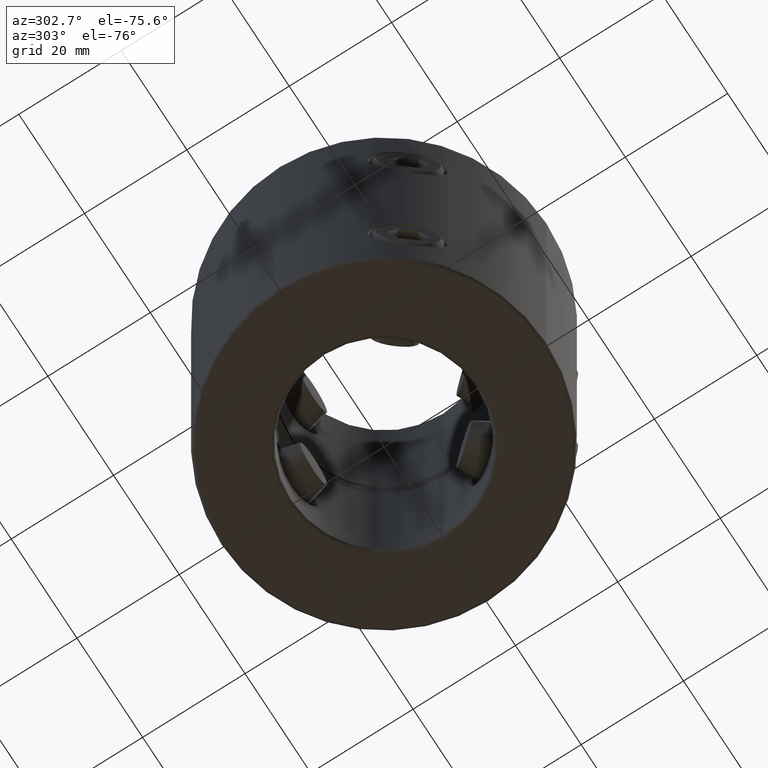
[diagram: clean part render]
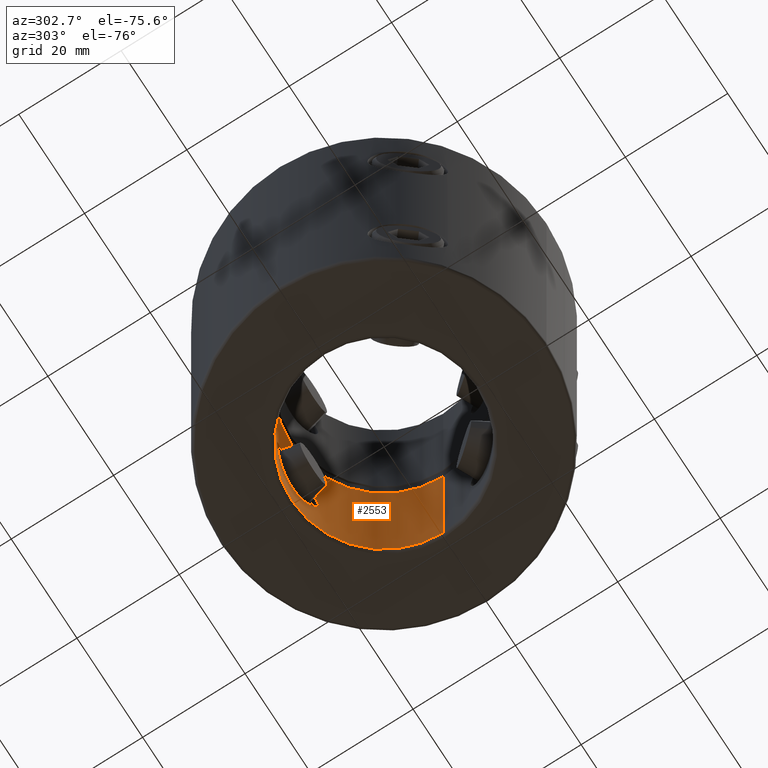
[diagram: same view with one face highlighted and labeled with its STEP entity id]
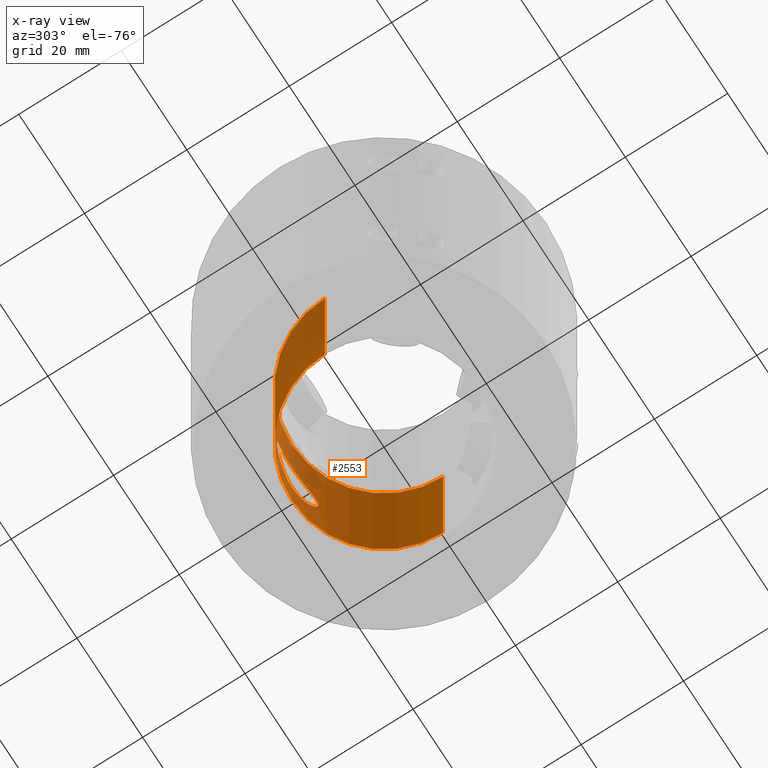
[diagram: x-ray of the same camera — body ghosted, the highlighted face saturated]
A machine part, auxiliary view. The second image highlights one B-rep face of the part: STEP entity #2553.
The next image is the same camera in x-ray: the body ghosted, the highlighted face saturated — about 22% of this face is hidden behind the body in this view.
In plain terms, the highlighted cylindrical surface (partial cylindrical patch) has radius 18 mm, axis along (0, -0, 1).
Its self-contained STEP definition (entity closure, byte-faithful):
#1145=EDGE_CURVE('NONE',#2211,#1853,#3258,.T.);
#1213=VERTEX_POINT('NONE',#3332);
#1277=EDGE_CURVE('NONE',#2715,#1853,#3402,.T.);
#1375=EDGE_CURVE('NONE',#2715,#2929,#3512,.T.);
#1383=VERTEX_POINT('NONE',#3520);
#1543=EDGE_CURVE('NONE',#1887,#1383,#3694,.T.);
#1853=VERTEX_POINT('NONE',#4038);
#1887=VERTEX_POINT('NONE',#4083);
#2211=VERTEX_POINT('NONE',#4457);
#2249=EDGE_CURVE('NONE',#1213,#2889,#4500,.T.);
#2547=EDGE_CURVE('NONE',#1383,#2211,#4842,.T.);
#2553=ADVANCED_FACE('NONE',(#4851,#4852),#4853,.F.);
#2607=EDGE_CURVE('NONE',#2889,#1213,#4911,.T.);
#2699=EDGE_CURVE('NONE',#2929,#1887,#5015,.T.);
#2715=VERTEX_POINT('NONE',#5034);
#2889=VERTEX_POINT('NONE',#5229);
#2929=VERTEX_POINT('NONE',#5272);
#3258=CIRCLE('',#5647,18.0);
#3332=CARTESIAN_POINT('',(7.021729373421E-014,18.0,-70.225));
#3402=LINE('',#6012,#6013);
#3512=CIRCLE('',#6198,18.0);
#3520=CARTESIAN_POINT('',(-18.0,2.20429143688028E-015,-42.25));
#3694=LINE('',#6449,#6450);
#4038=CARTESIAN_POINT('',(18.0,0.0,-42.25));
#4083=CARTESIAN_POINT('',(-18.0,2.20429143688028E-015,-79.3299999999999));
#4457=CARTESIAN_POINT('',(2.21959901630306E-015,18.0,-42.25));
#4500=B_SPLINE_CURVE_WITH_KNOTS('',3,(#7896,#7897,#7898,#7899,#7900,#7901,#7902,#7903,#7904,#7905,#7906,#7907,#7908,#7909,#7910,#7911,#7912,#7913,#7914,#7915,#7916,#7917,#7918,#7919,#7920,#7921,#7922,#7923,#7924,#7925,#7926,#7927,#7928,#7929,#7930,#7931,#7932,#7933,#7934,#7935,#7936,#7937,#7938,#7939),.UNSPECIFIED.,.F.,.F.,(4,2,2,2,2,2,2,2,2,2,2,2,2,2,2,2,2,2,2,2,2,4),(0.0197750623149012,0.0203928836318598,0.0210107049488184,0.0222463475827355,0.0234819902166526,0.0247176328505697,0.0259532754844868,0.0265710968014453,0.0271889181184039,0.0284245607523209,0.029660203386238,0.030895846020155,0.0315136673371135,0.032131488654072,0.0327493099710306,0.0333671312879891,0.0346027739219061,0.0358384165558232,0.0370740591897403,0.0376918805066988,0.0383097018236573,0.0395453444575744),.UNSPECIFIED.);
#4842=CIRCLE('',#8518,18.0);
#4851=FACE_OUTER_BOUND('',#8527,.T.);
#4852=FACE_BOUND('',#8528,.T.);
#4853=CYLINDRICAL_SURFACE('',#8529,18.0);
#4911=B_SPLINE_CURVE_WITH_KNOTS('',3,(#8606,#8607,#8608,#8609,#8610,#8611,#8612,#8613,#8614,#8615,#8616,#8617,#8618,#8619,#8620,#8621,#8622,#8623,#8624,#8625,#8626,#8627,#8628,#8629,#8630,#8631,#8632,#8633,#8634,#8635,#8636,#8637,#8638,#8639,#8640,#8641,#8642,#8643,#8644,#8645,#8646,#8647,#8648,#8649),.UNSPECIFIED.,.F.,.F.,(4,2,2,2,2,2,2,2,2,2,2,2,2,2,2,2,2,2,2,2,2,4),(0.0,0.0012359413946813,0.00185391209202195,0.0024718827893626,0.0037078241840439,0.00432579488138455,0.0049437655787252,0.00617970697340651,0.00741564836808782,0.00803361906542847,0.00865158976276912,0.00988753115745046,0.0111234725521318,0.0123594139468131,0.0135953553414945,0.0142133260388351,0.0148312967361758,0.0160672381308572,0.0173031795255385,0.0185391209202199,0.0191570916175606,0.0197750623149012),.UNSPECIFIED.);
#5015=CIRCLE('',#8849,18.0);
#5034=CARTESIAN_POINT('',(18.0,0.0,-79.3300000000001));
#5229=CARTESIAN_POINT('',(1.55894732073534E-013,18.0,-57.675));
#5272=CARTESIAN_POINT('',(9.53404706511296E-017,18.0,-79.33));
#5647=AXIS2_PLACEMENT_3D('',#10085,#10086,#10087);
#6012=CARTESIAN_POINT('',(18.0,0.0,0.0499999999999947));
#6013=VECTOR('',#10236,1000.0);
#6198=AXIS2_PLACEMENT_3D('',#10372,#10373,#10374);
#6449=CARTESIAN_POINT('',(-18.0,2.20429143688028E-015,0.0499999999999986));
#6450=VECTOR('',#10569,1000.0);
#7896=CARTESIAN_POINT('',(7.021729373421E-014,18.0,-70.225));
#7897=CARTESIAN_POINT('',(-0.205887554566942,18.0,-70.225));
#7898=CARTESIAN_POINT('',(-0.411770086211887,17.9964685669834,-70.2148919052617));
#7899=CARTESIAN_POINT('',(-0.823524971339323,17.9823313868892,-70.174165149648));
#7900=CARTESIAN_POINT('',(-1.03061502380834,17.9716283269579,-70.1432640625023));
#7901=CARTESIAN_POINT('',(-1.64099927630124,17.9296818034686,-70.0208314649564));
#7902=CARTESIAN_POINT('',(-2.03351167246427,17.8888495169559,-69.900531068749));
#7903=CARTESIAN_POINT('',(-2.79109364396325,17.7863965724643,-69.5850497773155));
#7904=CARTESIAN_POINT('',(-3.15790746677963,17.7241829102026,-69.3877722986615));
#7905=CARTESIAN_POINT('',(-3.83480642338882,17.5901477850016,-68.9335737012678));
#7906=CARTESIAN_POINT('',(-4.14887966905775,17.5178824074971,-68.6755137938334));
#7907=CARTESIAN_POINT('',(-4.7284310599745,17.3704158344665,-68.095554587157));
#7908=CARTESIAN_POINT('',(-4.98795657772271,17.2967062925269,-67.7789569235854));
#7909=CARTESIAN_POINT('',(-5.3269727022665,17.1941065972357,-67.2726850686285));
#7910=CARTESIAN_POINT('',(-5.43194538022429,17.1611280193554,-67.0982498403775));
#7911=CARTESIAN_POINT('',(-5.625537618957,17.098645326696,-66.7376215971464));
#7912=CARTESIAN_POINT('',(-5.7145971514104,17.0689886505111,-66.550290499162));
#7913=CARTESIAN_POINT('',(-5.95213821121081,16.9882320248867,-65.9792118781459));
#7914=CARTESIAN_POINT('',(-6.07152855692418,16.9453221828597,-65.5874113230135));
#7915=CARTESIAN_POINT('',(-6.23324487649969,16.886505298849,-64.7814043347667));
#7916=CARTESIAN_POINT('',(-6.27509210594005,16.8707800374392,-64.3620870989713));
#7917=CARTESIAN_POINT('',(-6.27490758164132,16.8708486701632,-63.5351125971665));
#7918=CARTESIAN_POINT('',(-6.23434443992152,16.8861013453688,-63.1253444254397));
#7919=CARTESIAN_POINT('',(-6.11251687415186,16.9304165564117,-62.5162520911031));
#7920=CARTESIAN_POINT('',(-6.06135231937529,16.9488672590645,-62.3134702332667));
#7921=CARTESIAN_POINT('',(-5.94071506812946,16.9915272351924,-61.9187131920135));
#7922=CARTESIAN_POINT('',(-5.87110603229566,17.0157873292139,-61.725682079938));
#7923=CARTESIAN_POINT('',(-5.71375962752675,17.0692663988333,-61.3479955475032));
#7924=CARTESIAN_POINT('',(-5.62602152188694,17.0984865449664,-61.163340604686));
#7925=CARTESIAN_POINT('',(-5.43229253748888,17.1610185618533,-60.8023363366825));
#7926=CARTESIAN_POINT('',(-5.32566608935776,17.1945200879321,-60.6251004311969));
#7927=CARTESIAN_POINT('',(-4.98300017278498,17.2981695758994,-60.1141767467886));
#7928=CARTESIAN_POINT('',(-4.72484171453589,17.3713537367251,-59.8006718025942));
#7929=CARTESIAN_POINT('',(-4.14965982000436,17.5176591830099,-59.2254495350937));
#7930=CARTESIAN_POINT('',(-3.82928229170922,17.5913543655339,-58.9621870643095));
#7931=CARTESIAN_POINT('',(-3.15202202629582,17.7252336635976,-58.5088201741914));
#7932=CARTESIAN_POINT('',(-2.79327745391647,17.7860774517163,-58.315944053245));
#7933=CARTESIAN_POINT('',(-2.22345835472087,17.8631735830472,-58.078526758023));
#7934=CARTESIAN_POINT('',(-2.02713447779372,17.8865915766279,-58.0078621981874));
#7935=CARTESIAN_POINT('',(-1.63203941961117,17.9269595791643,-57.8874326247352));
#7936=CARTESIAN_POINT('',(-1.43257565672668,17.9440369865789,-57.837265650737));
#7937=CARTESIAN_POINT('',(-0.828496060215111,17.9854535619775,-57.7163897919558));
#7938=CARTESIAN_POINT('',(-0.418044610906762,18.0,-57.675));
#7939=CARTESIAN_POINT('',(1.55894732073534E-013,18.0,-57.675));
#8518=AXIS2_PLACEMENT_3D('',#12059,#12060,#12061);
#8527=EDGE_LOOP('',(#12082,#12083,#12084,#12085,#12086,#12087));
#8528=EDGE_LOOP('',(#12088,#12089));
#8529=AXIS2_PLACEMENT_3D('',#12090,#12091,#12092);
#8606=CARTESIAN_POINT('',(1.55894732073534E-013,18.0,-57.675));
#8607=CARTESIAN_POINT('',(0.418145688131202,18.0,-57.675));
#8608=CARTESIAN_POINT('',(0.828676650340322,17.9854588281512,-57.7163726089908));
#8609=CARTESIAN_POINT('',(1.43365962246789,17.9439538187488,-57.8375092885882));
#8610=CARTESIAN_POINT('',(1.63350557788434,17.92683118571,-57.8878104382635));
#8611=CARTESIAN_POINT('',(2.02951907686067,17.886326317905,-58.0086588153798));
#8612=CARTESIAN_POINT('',(2.22538630764336,17.8629305471067,-58.0792668099584));
#8613=CARTESIAN_POINT('',(2.79437900350596,17.7858925494555,-58.3165303220509));
#8614=CARTESIAN_POINT('',(3.15364233447459,17.7249702200277,-58.5096363687273));
#8615=CARTESIAN_POINT('',(3.66343924945358,17.6241090607221,-58.8513054887423));
#8616=CARTESIAN_POINT('',(3.82925472196504,17.5887194962765,-58.9746315869955));
#8617=CARTESIAN_POINT('',(4.14521321618081,17.5169475833203,-59.2346325738906));
#8618=CARTESIAN_POINT('',(4.29580061813214,17.480503524342,-59.371472965733));
#8619=CARTESIAN_POINT('',(4.72610970145095,17.37099630853,-59.8021977980039));
#8620=CARTESIAN_POINT('',(4.98464335803674,17.2977078813922,-60.116111648753));
#8621=CARTESIAN_POINT('',(5.44313675920108,17.158951878755,-60.8007728698487));
#8622=CARTESIAN_POINT('',(5.63561611097828,17.0958273405846,-61.1603621789026));
#8623=CARTESIAN_POINT('',(5.87105111318483,17.0158052756466,-61.7255810630243));
#8624=CARTESIAN_POINT('',(5.94057834975719,16.9915749729895,-61.9183244165338));
#8625=CARTESIAN_POINT('',(6.06118484721055,16.948927088175,-62.3128637643733));
#8626=CARTESIAN_POINT('',(6.11238174796476,16.9304653302586,-62.5156959370586));
#8627=CARTESIAN_POINT('',(6.23419733134899,16.8861556122631,-63.1243706975347));
#8628=CARTESIAN_POINT('',(6.27478578277355,16.8708939725236,-63.5337586709006));
#8629=CARTESIAN_POINT('',(6.27521254220172,16.8707352418923,-64.3597572622197));
#8630=CARTESIAN_POINT('',(6.23358733705399,16.8863793418075,-64.7792580967371));
#8631=CARTESIAN_POINT('',(6.07170308192531,16.9452601056768,-65.5869794637143));
#8632=CARTESIAN_POINT('',(5.95201805971227,16.988280959986,-65.9798479082481));
#8633=CARTESIAN_POINT('',(5.63397926188092,17.0963881166538,-66.7437571817278));
#8634=CARTESIAN_POINT('',(5.43949544816212,17.1600677617356,-67.1048674055697));
#8635=CARTESIAN_POINT('',(5.09963225940575,17.2629012595888,-67.6120751409761));
#8636=CARTESIAN_POINT('',(4.97811918245662,17.2984545794072,-67.7756812062883));
#8637=CARTESIAN_POINT('',(4.71826548570888,17.3711304248435,-68.0919172001934));
#8638=CARTESIAN_POINT('',(4.57964049089562,17.4083040820498,-68.244660758553));
#8639=CARTESIAN_POINT('',(4.14684275952284,17.5183425952241,-68.6771230527049));
#8640=CARTESIAN_POINT('',(3.8333569187528,17.590474426523,-68.9347336126524));
#8641=CARTESIAN_POINT('',(3.15537345937336,17.7246448243284,-69.3892842164699));
#8642=CARTESIAN_POINT('',(2.78834985931743,17.7868031279157,-69.5863183058808));
#8643=CARTESIAN_POINT('',(2.03295574915093,17.8888890479868,-69.9006360924826));
#8644=CARTESIAN_POINT('',(1.64113832632256,17.929665434555,-70.0207829846071));
#8645=CARTESIAN_POINT('',(1.03099439226259,17.9716056590229,-70.1431982510011));
#8646=CARTESIAN_POINT('',(0.823774603123001,17.9823207563703,-70.1741344739561));
#8647=CARTESIAN_POINT('',(0.411879695821335,17.9964668615233,-70.2148870431005));
#8648=CARTESIAN_POINT('',(0.205937335241099,18.0,-70.225));
#8649=CARTESIAN_POINT('',(7.021729373421E-014,18.0,-70.225));
#8849=AXIS2_PLACEMENT_3D('',#12259,#12260,#12261);
#10085=CARTESIAN_POINT('',(0.0,0.0,-42.25));
#10086=DIRECTION('',(0.0,0.0,-1.0));
#10087=DIRECTION('',(0.0,-1.0,0.0));
#10236=DIRECTION('',(1.07175985593471E-016,0.0,1.0));
#10372=CARTESIAN_POINT('',(4.67858770388668E-015,0.0,-79.33));
#10373=DIRECTION('',(6.98296672221876E-015,-0.0,1.0));
#10374=DIRECTION('',(0.0,1.0,0.0));
#10569=DIRECTION('',(1.07175985593471E-016,0.0,1.0));
#12059=CARTESIAN_POINT('',(0.0,0.0,-42.25));
#12060=DIRECTION('',(0.0,0.0,-1.0));
#12061=DIRECTION('',(0.0,-1.0,0.0));
#12082=ORIENTED_EDGE('',*,*,#1543,.F.);
#12083=ORIENTED_EDGE('',*,*,#2699,.F.);
#12084=ORIENTED_EDGE('',*,*,#1375,.F.);
#12085=ORIENTED_EDGE('',*,*,#1277,.T.);
#12086=ORIENTED_EDGE('',*,*,#1145,.F.);
#12087=ORIENTED_EDGE('',*,*,#2547,.F.);
#12088=ORIENTED_EDGE('',*,*,#2607,.T.);
#12089=ORIENTED_EDGE('',*,*,#2249,.T.);
#12090=CARTESIAN_POINT('',(-9.0578996606572E-016,0.0,0.0499999999999967));
#12091=DIRECTION('',(1.07290839985545E-016,-0.0,1.0));
#12092=DIRECTION('',(1.0,0.0,-1.07290839985545E-016));
#12259=CARTESIAN_POINT('',(4.67858770388668E-015,0.0,-79.33));
#12260=DIRECTION('',(6.98296672221876E-015,-0.0,1.0));
#12261=DIRECTION('',(0.0,1.0,0.0));